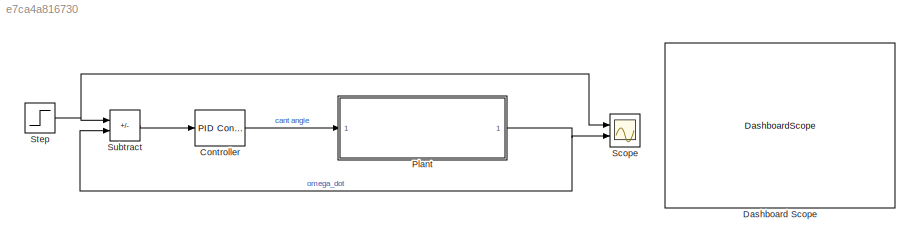
MODEL slx_e7ca4a816730
KIND model
CONFIG AbsTol = auto
CONFIG EnableMultiTasking = off
CONFIG FixedStep = auto
CONFIG MaxStep = auto
CONFIG MinStep = auto
CONFIG RelTol = 1e-3
CONFIG SampleTimeConstraint = Unconstrained
CONFIG SolverName = VariableStepAuto
CONFIG StartTime = 0.0
CONFIG StopTime = 10.0
BLOCK [Reference] Controller  REF=slpidlib/PID Controller
  Ports = [1, 1]
  SourceBlock = slpidlib/PID Controller
  SourceProductBaseCode = SL
  SourceType = PID 1dof
BLOCK [DashboardScope] Dashboard Scope
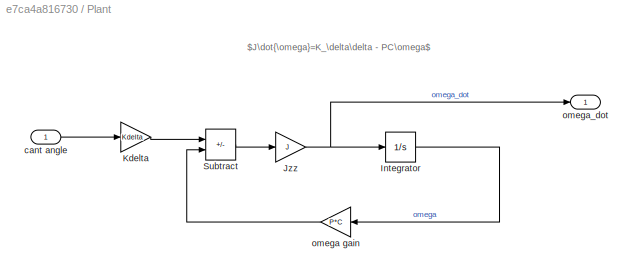
BLOCK [SubSystem] Plant
  Ports = [1, 1]
  RequestExecContextInheritance = off
BLOCK [Integrator] Plant/Integrator
  Ports = [1, 1]
BLOCK [Gain] Plant/Jzz
  Gain = J
BLOCK [Gain] Plant/Kdelta
  Gain = Kdelta
BLOCK [Sum] Plant/Subtract
  IconShape = rectangular
  Inputs = +-
  Ports = [2, 1]
BLOCK [Inport] Plant/cant angle
BLOCK [Gain] Plant/omega gain
  Gain = P*C
BLOCK [Outport] Plant/omega_dot
BLOCK [Scope] Scope
  Floating = off
  NumInputPorts = 2
  Ports = [2]
  ScopeSpecificationString = Simulink.scopes.TimeScopeBlockCfg('CurrentConfiguration', extmgr.ConfigurationSet(extmgr.Configuration('Core','General UI',true),extmgr.Configuration('Core','Source UI',true),extmgr.Configuration('Sources','WiredSimulink',true),extmgr.Configuration('Visuals','Time Domain',true,'SerializedDisplays',{struct('MinYLimReal','-0.07216','MaxYLimReal','0.64946','YLabelReal','','MinYLimMag','0.00000','MaxY...<+1329ch>
BLOCK [Step] Step
  SampleTime = 0
BLOCK [Sum] Subtract
  IconShape = rectangular
  Inputs = +-
  Ports = [2, 1]
ANNOTATION Plant: $J\dot{\omega}=K_\delta\delta - PC\omega$
LINE Controller:1 -> Plant:1
LINE Plant/Integrator:1 -> Plant/omega gain:1
NET Plant/Jzz:1 -> Plant/Integrator:1, Plant/omega_dot:1
LINE Plant/Kdelta:1 -> Plant/Subtract:1
LINE Plant/Subtract:1 -> Plant/Jzz:1
LINE Plant/cant angle:1 -> Plant/Kdelta:1
LINE Plant/omega gain:1 -> Plant/Subtract:2
NET Plant:1 -> Scope:2, Subtract:2
NET Step:1 -> Scope:1, Subtract:1
LINE Subtract:1 -> Controller:1
note: NET lines group one-source signal fan-out (src -> all destinations, sorted); 1:1 wires keep LINE
